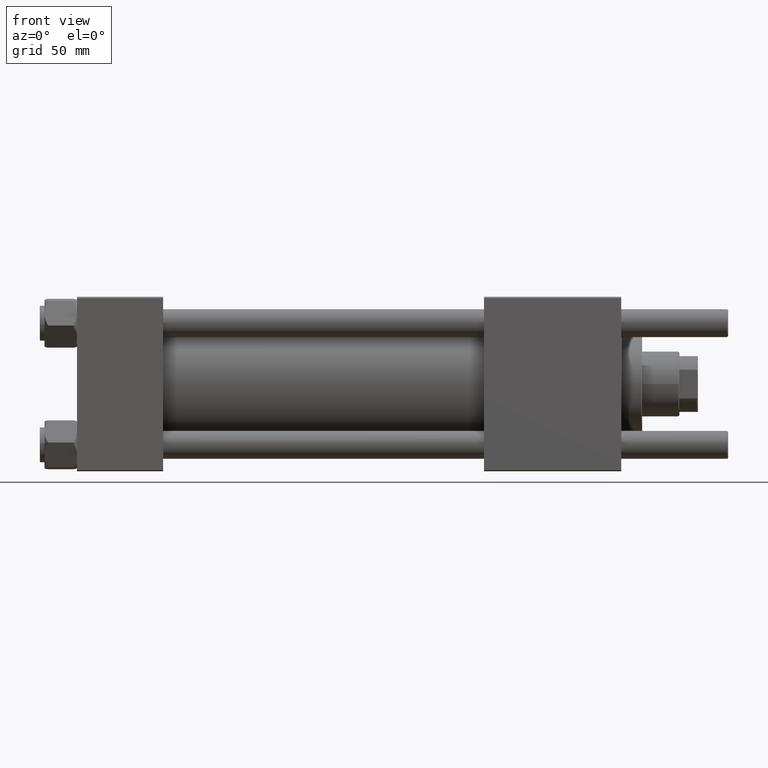
[diagram: clean part render]
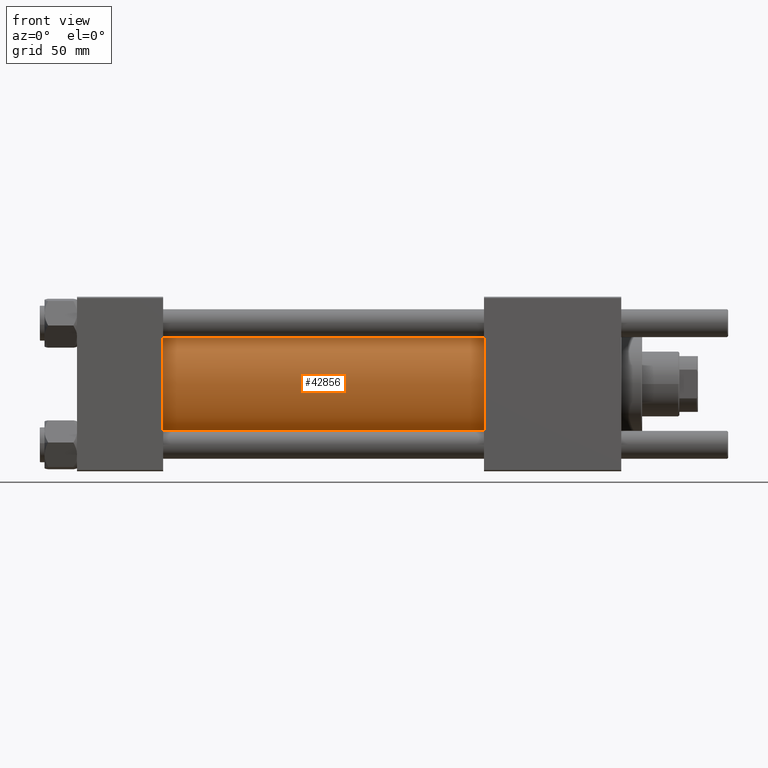
[diagram: same view with one face highlighted and labeled with its STEP entity id]
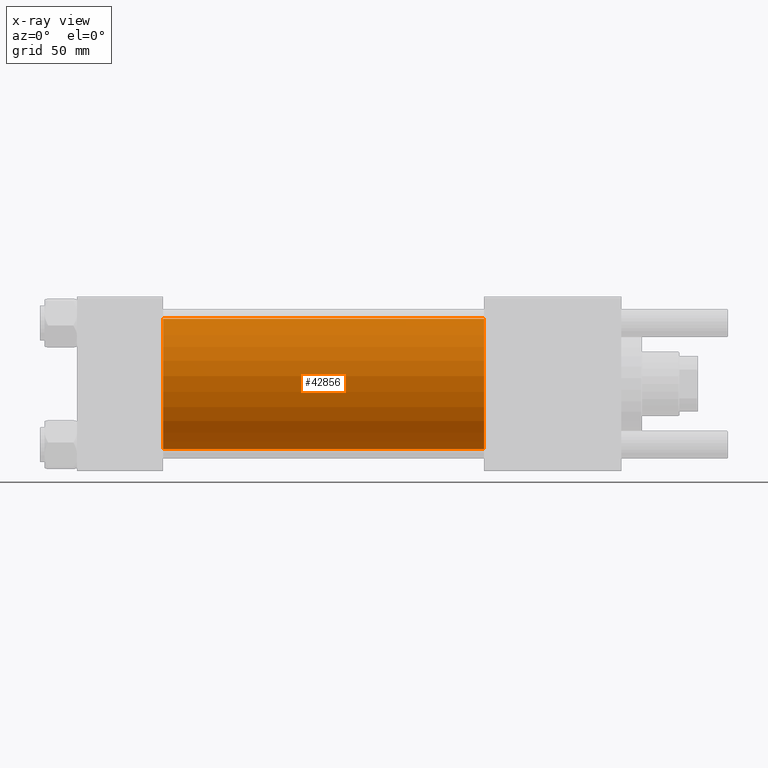
[diagram: x-ray of the same camera — body ghosted, the highlighted face saturated]
A machine part, front view. The second image highlights one B-rep face of the part: STEP entity #42856.
The next image is the same camera in x-ray: the body ghosted, the highlighted face saturated — about 0% of this face is hidden behind the body in this view.
In plain terms, the highlighted cylindrical surface (partial cylindrical patch) has radius 28 mm, axis along (-1, -0, -0).
Its self-contained STEP definition (entity closure, byte-faithful):
#1 = DIRECTION ( 'NONE',  ( 0.000000000000000000, 0.000000000000000000, -1.000000000000000000 ) ) ;
#4075 = EDGE_CURVE ( 'NONE', #34668, #46595, #38645, .T. ) ;
#4282 = AXIS2_PLACEMENT_3D ( 'NONE', #25484, #7353, #43036 ) ;
#7353 = DIRECTION ( 'NONE',  ( 1.000000000000000000, -0.000000000000000000, 0.000000000000000000 ) ) ;
#11406 = LINE ( 'NONE', #33271, #16562 ) ;
#12550 = EDGE_CURVE ( 'NONE', #14983, #27088, #11406, .T. ) ;
#14983 = VERTEX_POINT ( 'NONE', #34389 ) ;
#16562 = VECTOR ( 'NONE', #50536, 1000.000000000000000 ) ;
#17629 = DIRECTION ( 'NONE',  ( -1.000000000000000000, -0.000000000000000000, -0.000000000000000000 ) ) ;
#19841 = CIRCLE ( 'NONE', #37312, 28.00000000000000000 ) ;
#23510 = DIRECTION ( 'NONE',  ( 1.000000000000000000, 0.000000000000000000, 0.000000000000000000 ) ) ;
#25484 = CARTESIAN_POINT ( 'NONE',  ( 37.00000000000000711, -2.602085213965210642E-15, 0.000000000000000000 ) ) ;
#26150 = CARTESIAN_POINT ( 'NONE',  ( 37.00000000000000711, 8.269258236473784371E-16, -28.00000000000000000 ) ) ;
#26834 = FACE_OUTER_BOUND ( 'NONE', #30181, .T. ) ;
#27088 = VERTEX_POINT ( 'NONE', #26150 ) ;
#28145 = ORIENTED_EDGE ( 'NONE', *, *, #4075, .T. ) ;
#29110 = CIRCLE ( 'NONE', #4282, 28.00000000000000000 ) ;
#30181 = EDGE_LOOP ( 'NONE', ( #38671, #49914, #28145, #37272 ) ) ;
#33271 = CARTESIAN_POINT ( 'NONE',  ( 175.0000000000000284, 8.269258236473784371E-16, -28.00000000000000000 ) ) ;
#34304 = CARTESIAN_POINT ( 'NONE',  ( 37.00000000000000711, -2.602085213965210642E-15, 28.00000000000000000 ) ) ;
#34389 = CARTESIAN_POINT ( 'NONE',  ( 175.0000000000000284, 8.269258236473784371E-16, -28.00000000000000000 ) ) ;
#34432 = EDGE_CURVE ( 'NONE', #34668, #14983, #19841, .T. ) ;
#34668 = VERTEX_POINT ( 'NONE', #40148 ) ;
#34924 = VECTOR ( 'NONE', #51853, 1000.000000000000000 ) ;
#37272 = ORIENTED_EDGE ( 'NONE', *, *, #49968, .T. ) ;
#37312 = AXIS2_PLACEMENT_3D ( 'NONE', #41078, #23510, #1 ) ;
#38645 = LINE ( 'NONE', #56162, #34924 ) ;
#38671 = ORIENTED_EDGE ( 'NONE', *, *, #12550, .F. ) ;
#40065 = CARTESIAN_POINT ( 'NONE',  ( 175.0000000000000284, -2.602085213965210642E-15, 0.000000000000000000 ) ) ;
#40148 = CARTESIAN_POINT ( 'NONE',  ( 175.0000000000000284, -2.602085213965210642E-15, 28.00000000000000000 ) ) ;
#41078 = CARTESIAN_POINT ( 'NONE',  ( 175.0000000000000284, -2.602085213965210642E-15, 0.000000000000000000 ) ) ;
#42856 = ADVANCED_FACE ( 'NONE', ( #26834 ), #44392, .T. ) ;
#43036 = DIRECTION ( 'NONE',  ( 0.000000000000000000, 0.000000000000000000, 1.000000000000000000 ) ) ;
#44392 = CYLINDRICAL_SURFACE ( 'NONE', #44682, 28.00000000000000000 ) ;
#44682 = AXIS2_PLACEMENT_3D ( 'NONE', #40065, #17629, #52439 ) ;
#46595 = VERTEX_POINT ( 'NONE', #34304 ) ;
#49914 = ORIENTED_EDGE ( 'NONE', *, *, #34432, .F. ) ;
#49968 = EDGE_CURVE ( 'NONE', #46595, #27088, #29110, .T. ) ;
#50536 = DIRECTION ( 'NONE',  ( -1.000000000000000000, -0.000000000000000000, -0.000000000000000000 ) ) ;
#51853 = DIRECTION ( 'NONE',  ( -1.000000000000000000, -0.000000000000000000, -0.000000000000000000 ) ) ;
#52439 = DIRECTION ( 'NONE',  ( 0.000000000000000000, 0.000000000000000000, 1.000000000000000000 ) ) ;
#56162 = CARTESIAN_POINT ( 'NONE',  ( 175.0000000000000284, -2.602085213965210642E-15, 28.00000000000000000 ) ) ;